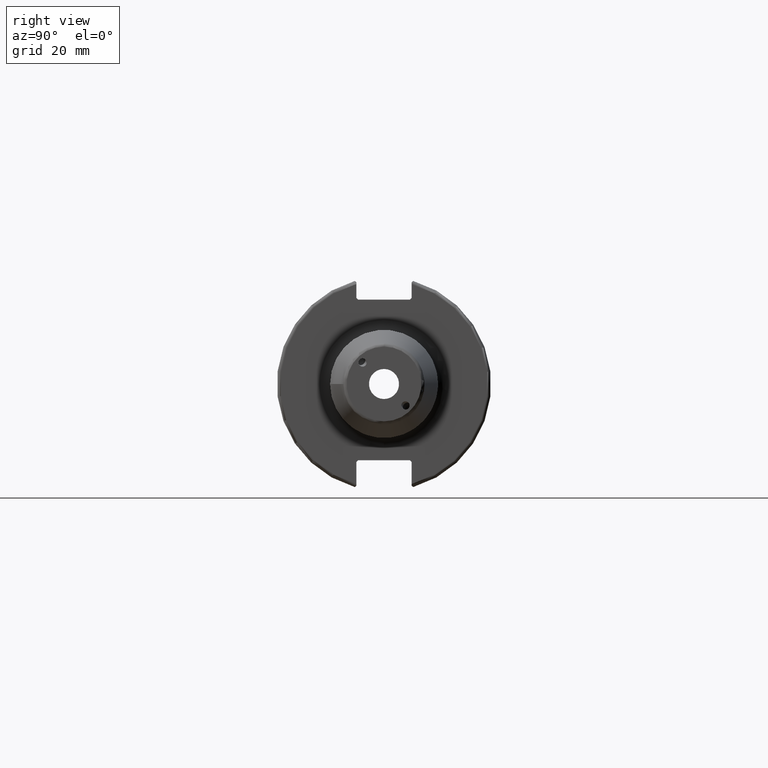
[diagram: clean part render]
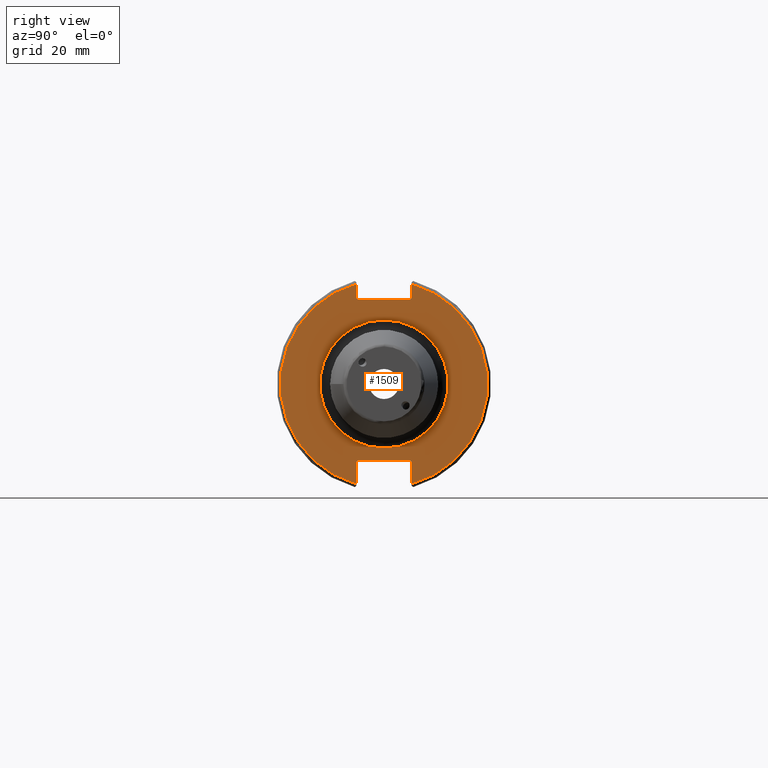
[diagram: same view with one face highlighted and labeled with its STEP entity id]
A machine part, right view. The second image highlights one B-rep face of the part: STEP entity #1509.
In plain terms, the highlighted planar face has unit normal (1, 0, 0).
Its self-contained STEP definition (entity closure, byte-faithful):
#66=FACE_BOUND('',#276,.T.);
#82=PLANE('',#1634);
#184=FACE_OUTER_BOUND('',#275,.T.);
#275=EDGE_LOOP('',(#1056,#1057,#1058,#1059,#1060,#1061,#1062,#1063,#1064,
#1065,#1066,#1067));
#276=EDGE_LOOP('',(#1068));
#375=LINE('',#2298,#468);
#376=LINE('',#2300,#469);
#377=LINE('',#2302,#470);
#378=LINE('',#2304,#471);
#379=LINE('',#2306,#472);
#380=LINE('',#2310,#473);
#381=LINE('',#2312,#474);
#382=LINE('',#2314,#475);
#383=LINE('',#2316,#476);
#384=LINE('',#2317,#477);
#468=VECTOR('',#1850,10.);
#469=VECTOR('',#1851,10.);
#470=VECTOR('',#1852,10.);
#471=VECTOR('',#1853,10.);
#472=VECTOR('',#1854,10.);
#473=VECTOR('',#1857,10.);
#474=VECTOR('',#1858,10.);
#475=VECTOR('',#1859,10.);
#476=VECTOR('',#1860,10.);
#477=VECTOR('',#1861,10.);
#565=CIRCLE('',#1631,19.);
#567=CIRCLE('',#1635,30.75);
#568=CIRCLE('',#1636,30.75);
#641=VERTEX_POINT('',#2287);
#642=VERTEX_POINT('',#2294);
#643=VERTEX_POINT('',#2295);
#644=VERTEX_POINT('',#2297);
#645=VERTEX_POINT('',#2299);
#646=VERTEX_POINT('',#2301);
#647=VERTEX_POINT('',#2303);
#648=VERTEX_POINT('',#2305);
#649=VERTEX_POINT('',#2307);
#650=VERTEX_POINT('',#2309);
#651=VERTEX_POINT('',#2311);
#652=VERTEX_POINT('',#2313);
#653=VERTEX_POINT('',#2315);
#801=EDGE_CURVE('',#641,#641,#565,.T.);
#804=EDGE_CURVE('',#642,#643,#567,.T.);
#805=EDGE_CURVE('',#642,#644,#375,.T.);
#806=EDGE_CURVE('',#645,#644,#376,.T.);
#807=EDGE_CURVE('',#645,#646,#377,.T.);
#808=EDGE_CURVE('',#647,#646,#378,.T.);
#809=EDGE_CURVE('',#647,#648,#379,.T.);
#810=EDGE_CURVE('',#649,#648,#568,.T.);
#811=EDGE_CURVE('',#649,#650,#380,.T.);
#812=EDGE_CURVE('',#651,#650,#381,.T.);
#813=EDGE_CURVE('',#651,#652,#382,.T.);
#814=EDGE_CURVE('',#653,#652,#383,.T.);
#815=EDGE_CURVE('',#653,#643,#384,.T.);
#1056=ORIENTED_EDGE('',*,*,#804,.F.);
#1057=ORIENTED_EDGE('',*,*,#805,.T.);
#1058=ORIENTED_EDGE('',*,*,#806,.F.);
#1059=ORIENTED_EDGE('',*,*,#807,.T.);
#1060=ORIENTED_EDGE('',*,*,#808,.F.);
#1061=ORIENTED_EDGE('',*,*,#809,.T.);
#1062=ORIENTED_EDGE('',*,*,#810,.F.);
#1063=ORIENTED_EDGE('',*,*,#811,.T.);
#1064=ORIENTED_EDGE('',*,*,#812,.F.);
#1065=ORIENTED_EDGE('',*,*,#813,.T.);
#1066=ORIENTED_EDGE('',*,*,#814,.F.);
#1067=ORIENTED_EDGE('',*,*,#815,.T.);
#1068=ORIENTED_EDGE('',*,*,#801,.F.);
#1509=ADVANCED_FACE('',(#184,#66),#82,.T.);
#1631=AXIS2_PLACEMENT_3D('',#2289,#1839,#1840);
#1634=AXIS2_PLACEMENT_3D('',#2293,#1846,#1847);
#1635=AXIS2_PLACEMENT_3D('',#2296,#1848,#1849);
#1636=AXIS2_PLACEMENT_3D('',#2308,#1855,#1856);
#1839=DIRECTION('center_axis',(1.,0.,0.));
#1840=DIRECTION('ref_axis',(0.,-1.,-1.22464679914735E-16));
#1846=DIRECTION('center_axis',(1.,0.,0.));
#1847=DIRECTION('ref_axis',(0.,0.,-1.));
#1848=DIRECTION('center_axis',(-1.,0.,0.));
#1849=DIRECTION('ref_axis',(0.,1.,-6.12323399573677E-17));
#1850=DIRECTION('',(0.,0.,-1.));
#1851=DIRECTION('',(0.,0.707106781186549,0.707106781186546));
#1852=DIRECTION('',(0.,-1.,0.));
#1853=DIRECTION('',(0.,0.70710678118655,-0.707106781186545));
#1854=DIRECTION('',(0.,0.,1.));
#1855=DIRECTION('center_axis',(-1.,0.,0.));
#1856=DIRECTION('ref_axis',(0.,-1.,1.60812264967664E-16));
#1857=DIRECTION('',(0.,0.,1.));
#1858=DIRECTION('',(0.,-0.707106781186549,-0.707106781186546));
#1859=DIRECTION('',(0.,1.,0.));
#1860=DIRECTION('',(0.,-0.707106781186549,0.707106781186546));
#1861=DIRECTION('',(0.,0.,-1.));
#2287=CARTESIAN_POINT('',(19.05,-2.32682891837997E-15,-19.));
#2289=CARTESIAN_POINT('Origin',(19.05,0.,0.));
#2293=CARTESIAN_POINT('Origin',(19.05,0.,0.));
#2294=CARTESIAN_POINT('',(19.05,8.19,29.6392712461019));
#2295=CARTESIAN_POINT('',(19.05,8.19,-29.6392712461019));
#2296=CARTESIAN_POINT('Origin',(19.05,0.,0.));
#2297=CARTESIAN_POINT('',(19.05,8.19,25.5));
#2298=CARTESIAN_POINT('',(19.05,8.19,12.5));
#2299=CARTESIAN_POINT('',(19.05,7.69,25.));
#2300=CARTESIAN_POINT('',(19.05,-0.35750000000001,16.9525));
#2301=CARTESIAN_POINT('',(19.05,-7.69,25.));
#2302=CARTESIAN_POINT('',(19.05,0.,25.));
#2303=CARTESIAN_POINT('',(19.05,-8.19,25.5));
#2304=CARTESIAN_POINT('',(19.05,0.357500000000014,16.9525));
#2305=CARTESIAN_POINT('',(19.05,-8.19,29.6392712461019));
#2306=CARTESIAN_POINT('',(19.05,-8.19,12.5));
#2307=CARTESIAN_POINT('',(19.05,-8.19,-29.6392712461019));
#2308=CARTESIAN_POINT('Origin',(19.05,0.,0.));
#2309=CARTESIAN_POINT('',(19.05,-8.19,-23.1));
#2310=CARTESIAN_POINT('',(19.05,-8.19,-11.3));
#2311=CARTESIAN_POINT('',(19.05,-7.69,-22.6));
#2312=CARTESIAN_POINT('',(19.05,-0.242499999999991,-15.1525));
#2313=CARTESIAN_POINT('',(19.05,7.69,-22.6));
#2314=CARTESIAN_POINT('',(19.05,-2.77555756156289E-16,-22.6));
#2315=CARTESIAN_POINT('',(19.05,8.19,-23.1));
#2316=CARTESIAN_POINT('',(19.05,0.242499999999989,-15.1525));
#2317=CARTESIAN_POINT('',(19.05,8.19,-11.3));